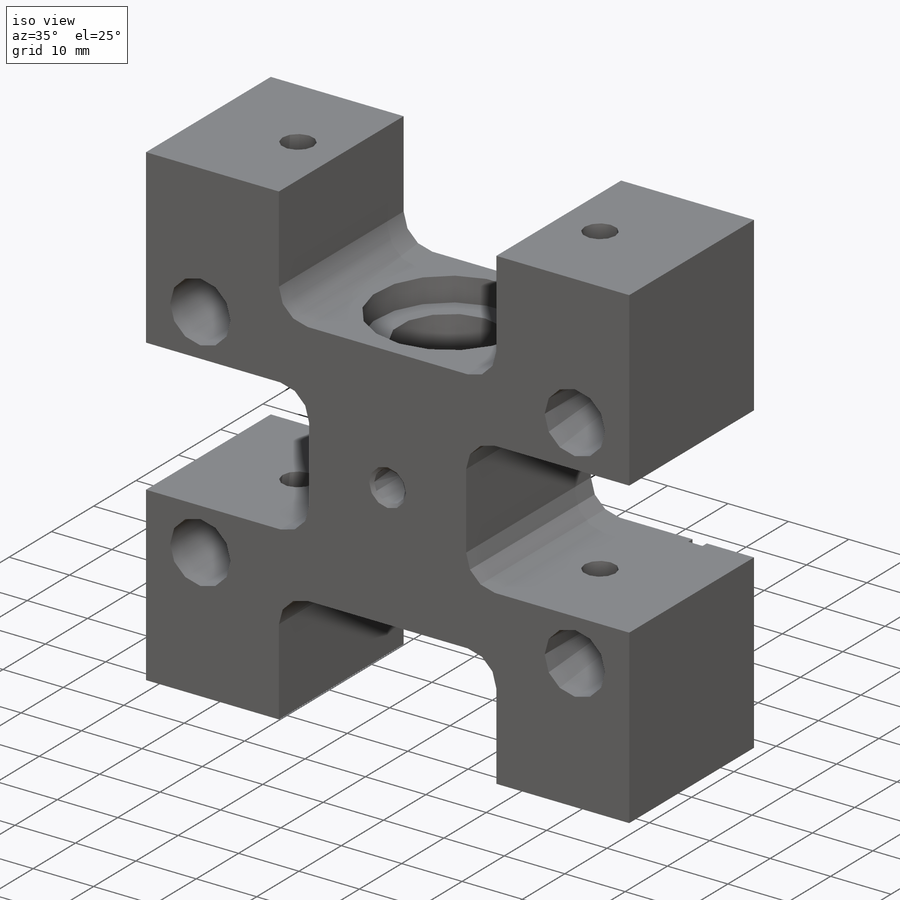
[diagram: iso view]
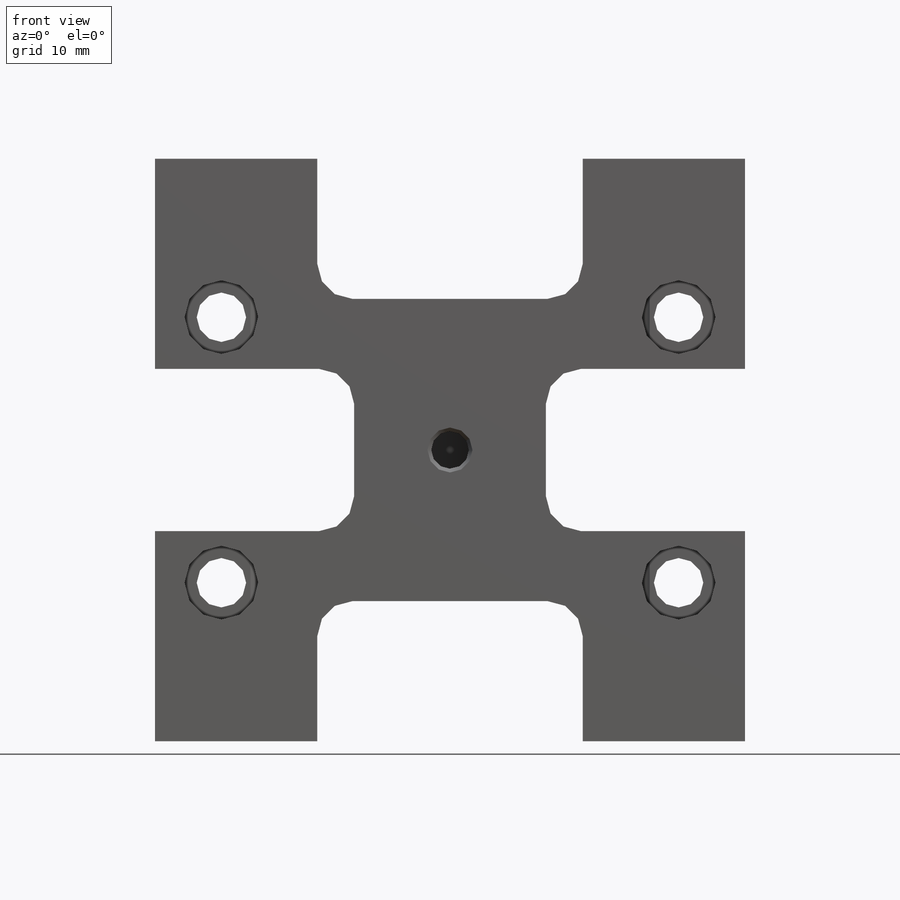
[diagram: front view]
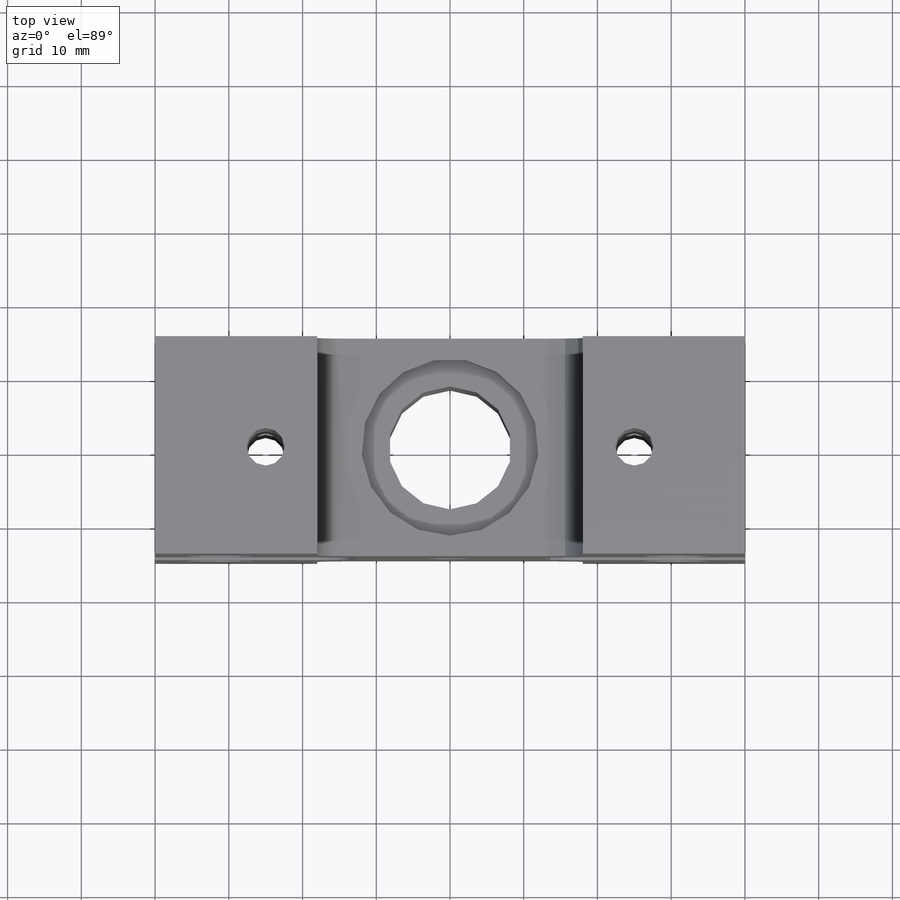
[diagram: top view]
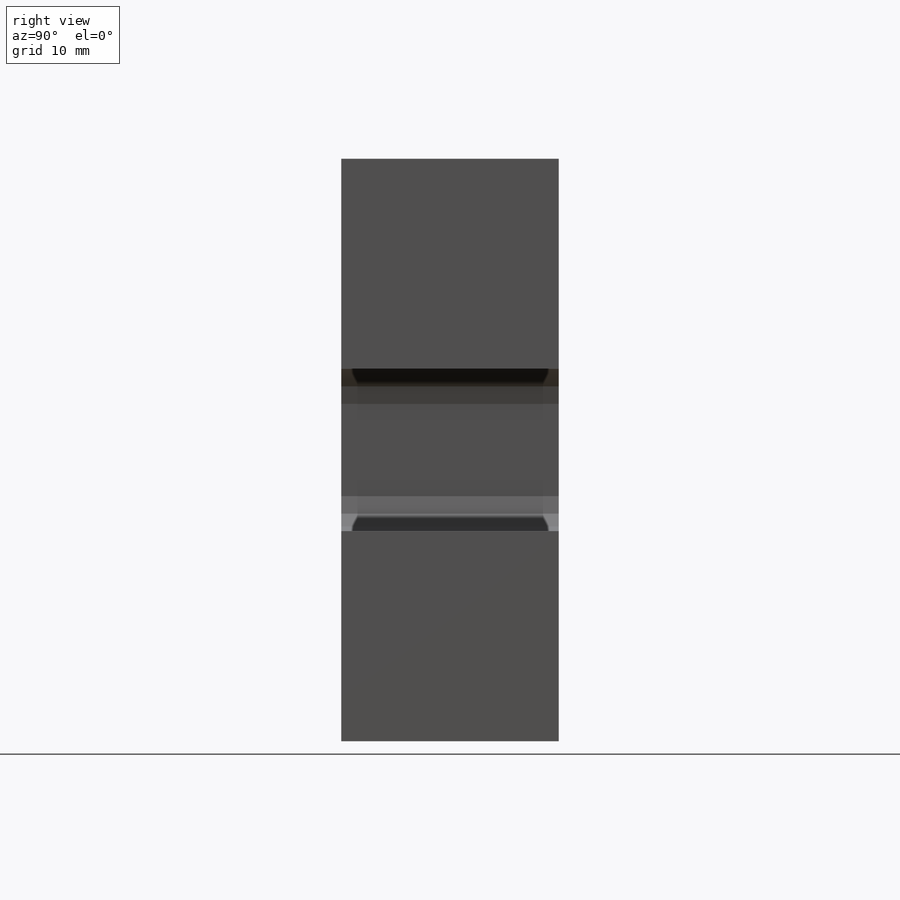
[diagram: right view]
SOLIDWORKS PART (.sldprt)
format: sldprt  version: not decoded by parser v0  size: 427,520 bytes
history: native  units: mm
features: sketch x14, hole x5, cut_extrude x3, material x1, extrude x1 + 1 further entry (+13 scaffold rows collapsed)
feature tree (38):
  scaffold x13  (default folders/planes/origin — collapsed)
  material  "6061-T6 Al"
  "Origin"  ID=-1
  sketch  "Sketch1"  dims[c1.D7=4.75mm c1.D1=80.0mm c1.D2=18.5mm c1.D3=39.5mm c1.D4=39.5mm c1.D5=22.0mm c2.D2=36.0mm c2.D3=19.0mm c2.D4=79.0mm c2.D6=27.0mm]
  extrude  "Boss-Extrude1"  Depth=29.5mm
  hole  "CBORE for M6 Hex Head Bolt1"  Diameter=6.7mm Depth=29.5mm
  sketch  "Sketch3"  dims[D1=36.0mm D2=62.0mm]
  sketch  "Sketch4"  dims[hole-wizard template sketch: 41 standard entries collapsed; hole parameters kept: c12.Thru Hole Dia.=6.7mm c12.Thru Hole Depth=29.5mm c12.C'Bore Dia.=10.0mm c12.C'Bore Depth=16.0mm]
  hole  "Tapped Hole for #10-32 Helicoil1"  Diameter=5.1054mm Depth=11.9888mm
  sketch  "Sketch6"
  sketch  "Sketch7"  dims[hole-wizard template sketch: 40 standard entries collapsed; hole parameters kept: c13.Tap Drill Depth=11.9888mm c13.Near C'Sink Dia.=6.096mm c13.D4=~33.297463mm c13.Near C'Sink Angle=90.0deg c14.D5=~14.816244mm c14.Drill Angle=118.0deg]
  hole  "3/4-10 Tapped Hole1"  Diameter=16.66748mm Depth=60mm
  sketch  "Sketch9"
  sketch  "Sketch10"  dims[hole-wizard template sketch: 59 standard entries collapsed; hole parameters kept: c18.Thread Major Dia.=~16.66748mm c18.Thru Tap Drill Depth=60.0mm]
  sketch  "Sketch11"  dims[D1=24.0mm]
  cut_extrude  "Cut-Extrude1"  Depth=4mm
  sketch  "Sketch12"
  cut_extrude  "Cut-Extrude2"  Depth=4mm
  hole  "1/4-20 Tapped Hole1"  Diameter=5.1054mm Depth=28.5mm
  sketch  "Sketch16"  dims[D1=15.0mm D2=50.0mm]
  sketch  "Sketch17"  dims[hole-wizard template sketch: 60 standard entries collapsed; hole parameters kept: c18.Thru Tap Drill Depth=28.5mm]
  hole  "1/4-20 Tapped Hole2"  Diameter=5.1054mm Depth=28.5mm
  sketch  "Sketch19"
  sketch  "Sketch18"  dims[hole-wizard template sketch: 60 standard entries collapsed; hole parameters kept: c18.Thru Tap Drill Depth=28.5mm]
  sketch  "Sketch20"  dims[D1=2.36mm D2=2.36mm]
  cut_extrude  "Cut-Extrude3"  Depth=1mm
decode coverage: 19 of 23 modeling features carry decoded parameters; 1 rows unclassified (native names shown)
note: ~ marks probable driven/reference dimensions
summary: Diameter pulled from absorbed wizard sketch
note: suppression state not decoded; provenance and decode notes live in map.json
